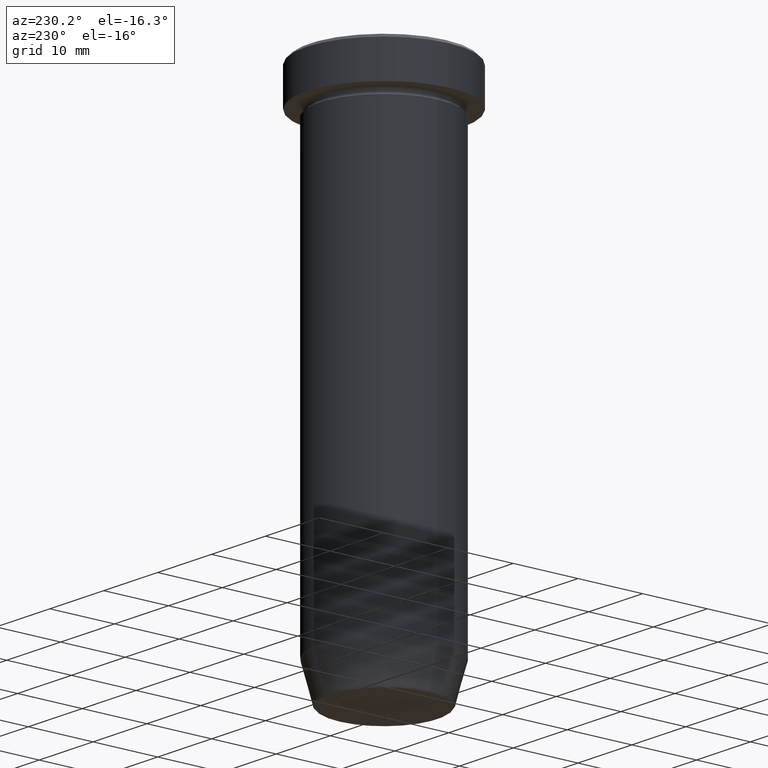
[diagram: clean part render]
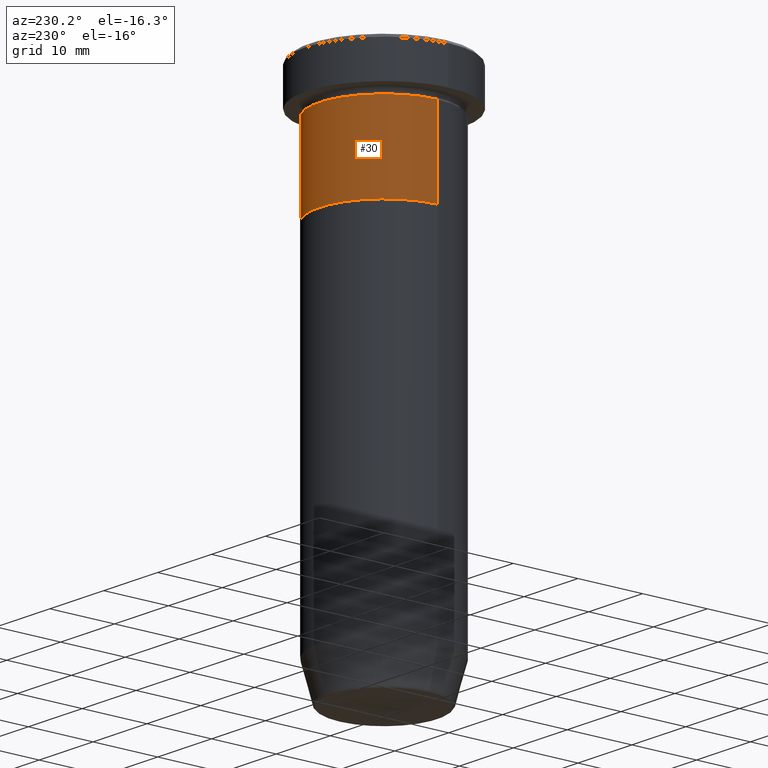
[diagram: same view with one face highlighted and labeled with its STEP entity id]
A machine part, auxiliary view. The second image highlights one B-rep face of the part: STEP entity #30.
In plain terms, the highlighted cylindrical surface (partial cylindrical patch) has radius 10 mm, axis along (-0, -0, 1).
Its self-contained STEP definition (entity closure, byte-faithful):
#5 = CARTESIAN_POINT ( 'NONE',  ( -10.00000000000000000, 1.224646799147353256E-15, -6.999999999999999112 ) ) ;
#9 = LINE ( 'NONE', #133, #162 ) ;
#17 = VECTOR ( 'NONE', #230, 1000.000000000000000 ) ;
#29 = DIRECTION ( 'NONE',  ( -0.000000000000000000, -0.000000000000000000, 1.000000000000000000 ) ) ;
#30 = ADVANCED_FACE ( 'NONE', ( #432 ), #153, .T. ) ;
#33 = AXIS2_PLACEMENT_3D ( 'NONE', #560, #29, #290 ) ;
#36 = CARTESIAN_POINT ( 'NONE',  ( 10.00000000000000000, 0.000000000000000000, -20.00000000000000000 ) ) ;
#76 = ORIENTED_EDGE ( 'NONE', *, *, #199, .T. ) ;
#80 = DIRECTION ( 'NONE',  ( -0.000000000000000000, -0.000000000000000000, 1.000000000000000000 ) ) ;
#111 = AXIS2_PLACEMENT_3D ( 'NONE', #485, #80, #588 ) ;
#133 = CARTESIAN_POINT ( 'NONE',  ( -10.00000000000000000, 1.224646799147353256E-15, 0.000000000000000000 ) ) ;
#153 = CYLINDRICAL_SURFACE ( 'NONE', #33, 10.00000000000000000 ) ;
#159 = ORIENTED_EDGE ( 'NONE', *, *, #529, .F. ) ;
#161 = VERTEX_POINT ( 'NONE', #36 ) ;
#162 = VECTOR ( 'NONE', #507, 1000.000000000000000 ) ;
#180 = LINE ( 'NONE', #225, #17 ) ;
#199 = EDGE_CURVE ( 'NONE', #161, #481, #394, .T. ) ;
#225 = CARTESIAN_POINT ( 'NONE',  ( 10.00000000000000000, 0.000000000000000000, 0.000000000000000000 ) ) ;
#230 = DIRECTION ( 'NONE',  ( -0.000000000000000000, -0.000000000000000000, 1.000000000000000000 ) ) ;
#290 = DIRECTION ( 'NONE',  ( 1.000000000000000000, 0.000000000000000000, 0.000000000000000000 ) ) ;
#308 = EDGE_LOOP ( 'NONE', ( #76, #468, #159, #478 ) ) ;
#314 = AXIS2_PLACEMENT_3D ( 'NONE', #461, #457, #366 ) ;
#366 = DIRECTION ( 'NONE',  ( 1.000000000000000000, 0.000000000000000000, 0.000000000000000000 ) ) ;
#370 = CARTESIAN_POINT ( 'NONE',  ( 10.00000000000000000, 0.000000000000000000, -6.999999999999999112 ) ) ;
#394 = CIRCLE ( 'NONE', #111, 10.00000000000000000 ) ;
#432 = FACE_OUTER_BOUND ( 'NONE', #308, .T. ) ;
#435 = CIRCLE ( 'NONE', #314, 10.00000000000000000 ) ;
#446 = CARTESIAN_POINT ( 'NONE',  ( -10.00000000000000000, 1.224646799147353256E-15, -20.00000000000000000 ) ) ;
#457 = DIRECTION ( 'NONE',  ( -0.000000000000000000, -0.000000000000000000, 1.000000000000000000 ) ) ;
#461 = CARTESIAN_POINT ( 'NONE',  ( 0.000000000000000000, 0.000000000000000000, -6.999999999999999112 ) ) ;
#468 = ORIENTED_EDGE ( 'NONE', *, *, #551, .T. ) ;
#478 = ORIENTED_EDGE ( 'NONE', *, *, #537, .F. ) ;
#481 = VERTEX_POINT ( 'NONE', #446 ) ;
#485 = CARTESIAN_POINT ( 'NONE',  ( 0.000000000000000000, 0.000000000000000000, -20.00000000000000000 ) ) ;
#507 = DIRECTION ( 'NONE',  ( -0.000000000000000000, -0.000000000000000000, 1.000000000000000000 ) ) ;
#529 = EDGE_CURVE ( 'NONE', #549, #539, #435, .T. ) ;
#537 = EDGE_CURVE ( 'NONE', #161, #549, #180, .T. ) ;
#539 = VERTEX_POINT ( 'NONE', #5 ) ;
#549 = VERTEX_POINT ( 'NONE', #370 ) ;
#551 = EDGE_CURVE ( 'NONE', #481, #539, #9, .T. ) ;
#560 = CARTESIAN_POINT ( 'NONE',  ( 0.000000000000000000, 0.000000000000000000, 0.000000000000000000 ) ) ;
#588 = DIRECTION ( 'NONE',  ( 1.000000000000000000, 0.000000000000000000, 0.000000000000000000 ) ) ;